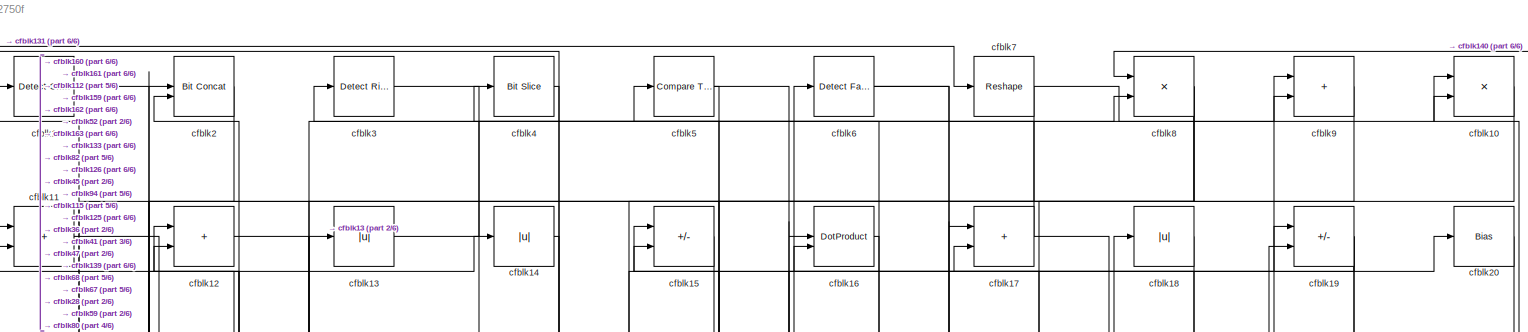
[diagram: root canvas - part 1/6, full width, top band]
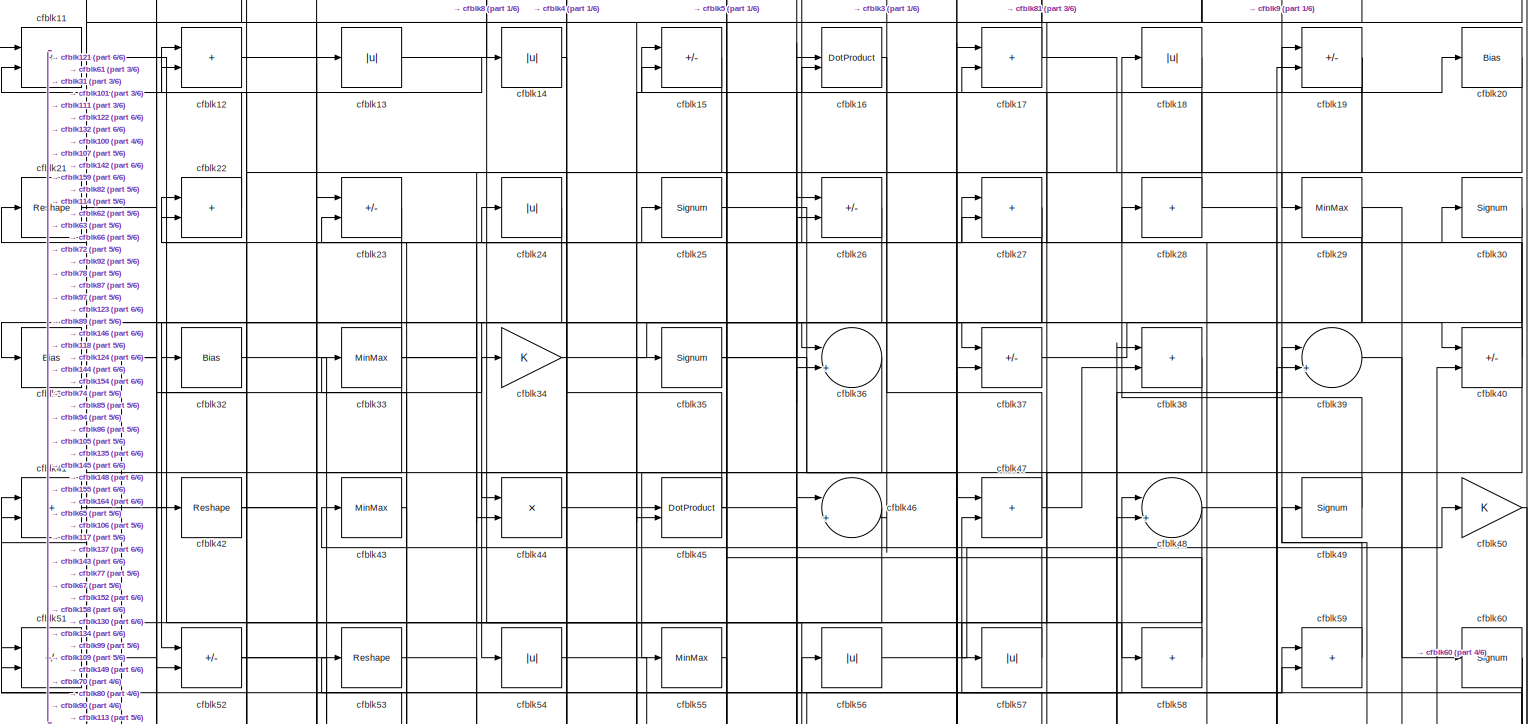
[diagram: root canvas - part 2/6, full width, top band]
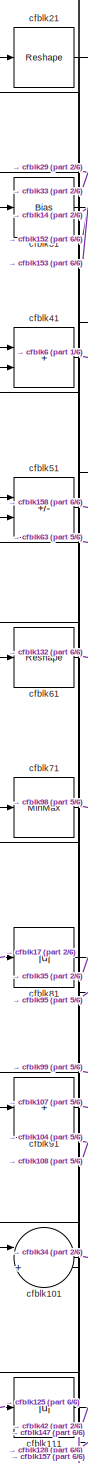
[diagram: root canvas - part 3/6, middle left region]
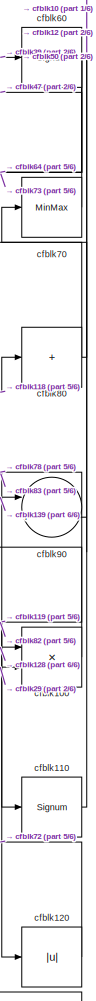
[diagram: root canvas - part 4/6, middle right region]
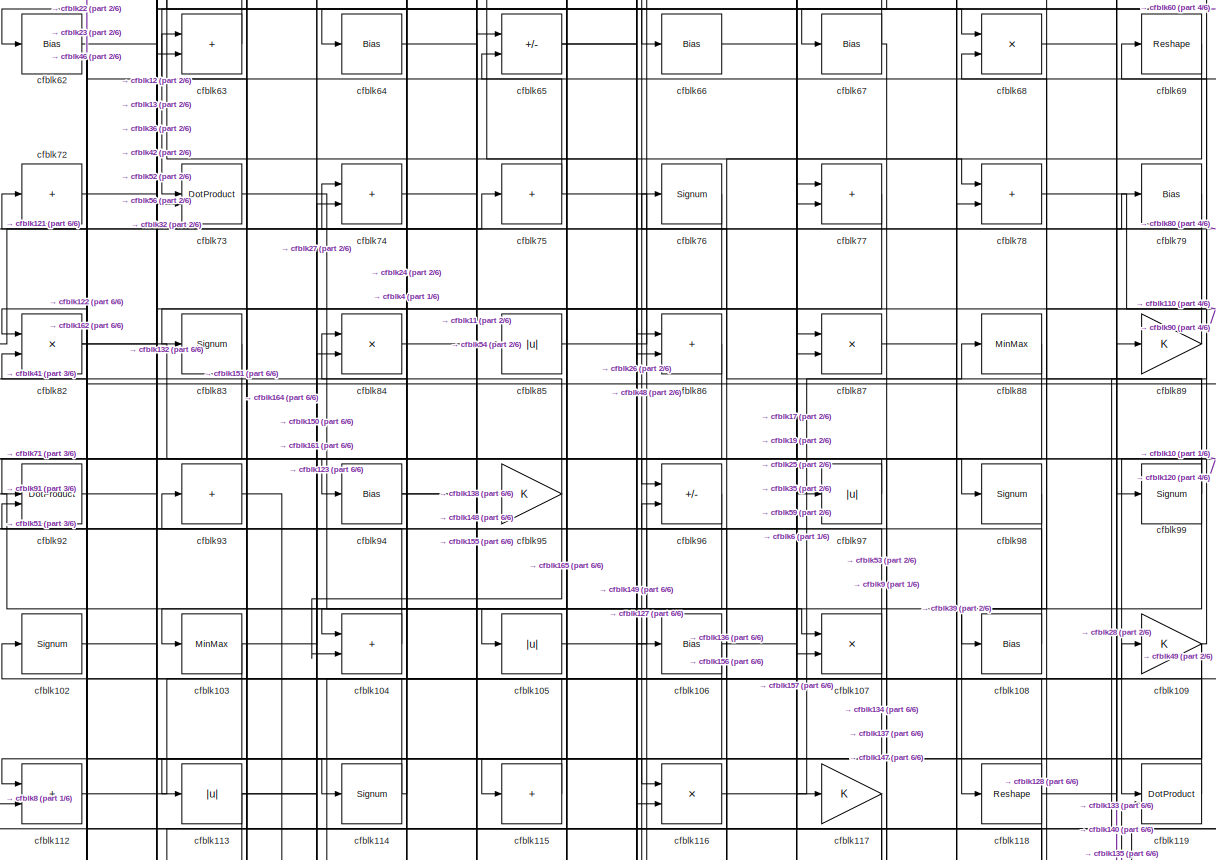
[diagram: root canvas - part 5/6, full width, middle band]
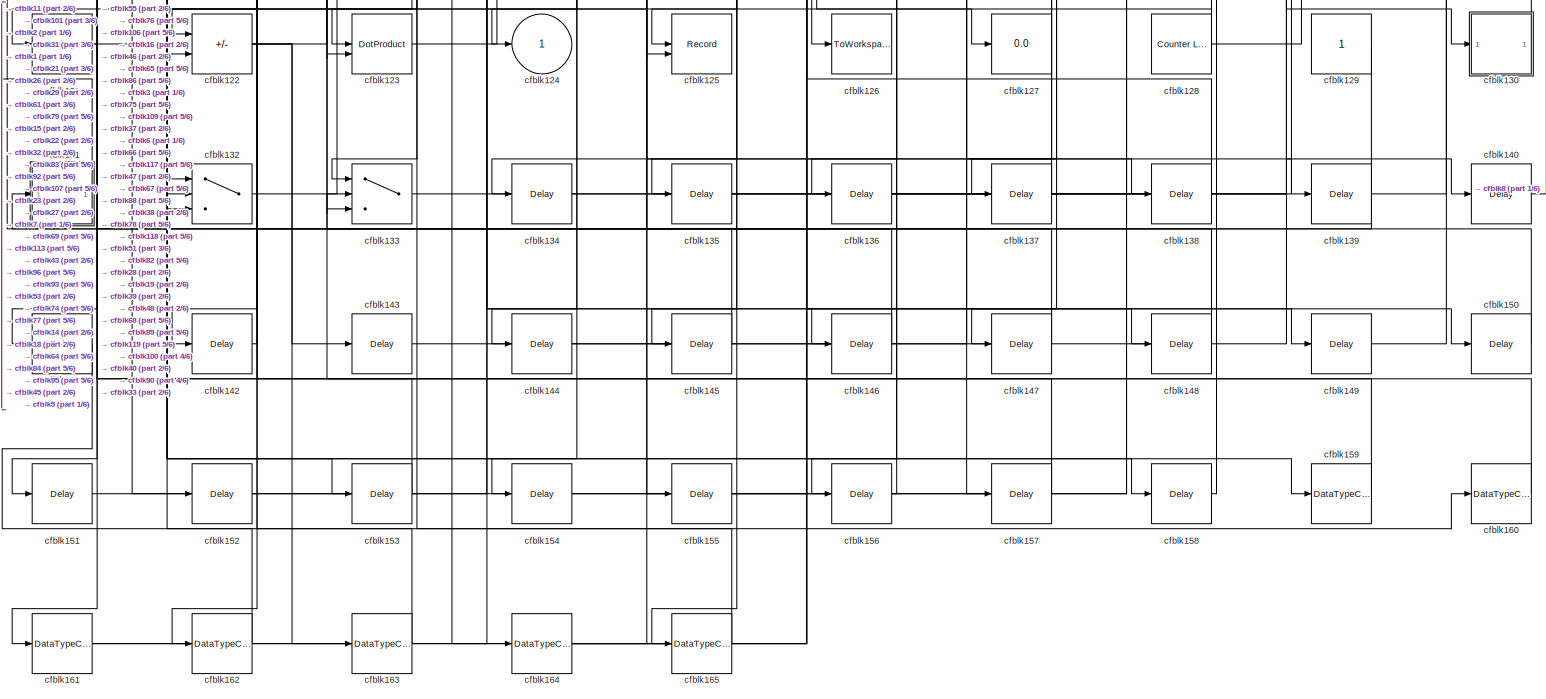
[diagram: root canvas - part 6/6, full width, bottom band]
MODEL slx_2ec541e2750f
KIND model
CONFIG AbsTol = auto
CONFIG EnableMultiTasking = off
CONFIG FixedStep = auto
CONFIG MaxStep = auto
CONFIG MinStep = auto
CONFIG RelTol = 1e-3
CONFIG SampleTimeConstraint = Unconstrained
CONFIG SolverName = VariableStepAuto
CONFIG StartTime = 0.0
CONFIG StopTime = 10.0
BLOCK [Reference] cfblk1  REF=simulink/Logic and Bit
Operations/Detect
Change
  LibrarySourceBlock = hdlsllib/Logic and Bit\nOperations/Detect\nChange
  SourceBlock = simulink/Logic and Bit\nOperations/Detect\nChange
  SourceType = Detect Change
BLOCK [Product] cfblk10
  Inputs = */
  RndMeth = Zero
  SaturateOnIntegerOverflow = on
BLOCK [Product] cfblk100
  Inputs = */
  RndMeth = Zero
  SaturateOnIntegerOverflow = on
BLOCK [Sum] cfblk101
  Inputs = |++
BLOCK [Signum] cfblk102
BLOCK [MinMax] cfblk103
BLOCK [Sum] cfblk104
  IconShape = rectangular
BLOCK [Abs] cfblk105
  SaturateOnIntegerOverflow = off
BLOCK [Bias] cfblk106
  Bias = 0.0
  SaturateOnIntegerOverflow = off
BLOCK [Product] cfblk107
  Inputs = */
  RndMeth = Zero
  SaturateOnIntegerOverflow = on
BLOCK [Bias] cfblk108
  Bias = 0.0
  SaturateOnIntegerOverflow = off
BLOCK [Gain] cfblk109
BLOCK [Sum] cfblk11
  IconShape = rectangular
BLOCK [Signum] cfblk110
BLOCK [Abs] cfblk111
  SaturateOnIntegerOverflow = off
BLOCK [Sum] cfblk112
  IconShape = rectangular
BLOCK [Abs] cfblk113
  SaturateOnIntegerOverflow = off
BLOCK [Signum] cfblk114
BLOCK [Sum] cfblk115
  IconShape = rectangular
  Inputs = +
BLOCK [Product] cfblk116
  Inputs = */
  RndMeth = Zero
  SaturateOnIntegerOverflow = on
BLOCK [Gain] cfblk117
BLOCK [Reshape] cfblk118
BLOCK [DotProduct] cfblk119
  OutDataTypeStr = Inherit: Inherit via internal rule
BLOCK [Sum] cfblk12
  IconShape = rectangular
BLOCK [Abs] cfblk120
  SaturateOnIntegerOverflow = off
BLOCK [Reshape] cfblk121
BLOCK [Sum] cfblk122
  IconShape = rectangular
  Inputs = +-
BLOCK [DotProduct] cfblk123
  OutDataTypeStr = Inherit: Inherit via internal rule
BLOCK [Outport] cfblk124
  VectorParamsAs1DForOutWhenUnconnected = off
BLOCK [Record] cfblk125
  CompatibilityTag = XY
  FileSettingsInternal = {"entries":[{"content":{"excelSettings":{"content":{},"type":"Streamout.ExcelSettings"}},"type":"Streamout.FileSettingStorage","uuid":""}],"packageUris":["http:\/\/schema.mathworks.com\/mf0\/streamout_blocks\/R2020a"],"version":"1.0"}
  Layout = [1 1]
  SignalsInternal = {"entries":[{"content":{"signals":[{"content":{"blockPath":[],"dimensions":[1],"domain":"","lineColor":"#a2142f","plots":[1],"port":1,"sid":[""],"signalID":6539,"signalName":"cfblk5"},"type":"RecordBlkView.Signal","uuid":""},{"content":{"blockPath":[],"dimensions":[1],"domain":"","lineColor":"#139fff","plots":[1],"port":2,"sid":[""],"signalID":6543,"signalName":"cfblk21"},"type":"RecordBlkView.Sig...<+161ch>
  VisualizationBindings = {"xyplotplugin":{"info":[{"series":[{"bindingParametersList":[{"parameter":"X-Axis","signalID":6539,"signalName":"cfblk5"},{"parameter":"Y-Axis","signalID":6543,"signalName":"cfblk21"}],"seriesID":41103}],"subplotID":1}]}}
  st = -1
BLOCK [ToWorkspace] cfblk126
  MaxDataPoints = inf
  SampleTime = -1
  SaveFormat = Timeseries
  VariableName = simout
BLOCK [Display] cfblk127
  Decimation = 1
BLOCK [Reference] cfblk128  REF=hdlsllib/Sources/Counter
Limited
  SourceBlock = hdlsllib/Sources/Counter\nLimited
  SourceType = Counter Limited
BLOCK [Constant] cfblk129
  SampleTime = -1
BLOCK [Abs] cfblk13
  SaturateOnIntegerOverflow = off
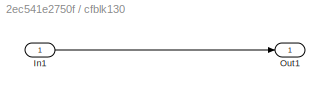
BLOCK [SubSystem] cfblk130
  LibrarySourceBlock = hdlsllib/Ports &\nSubsystems/Subsystem
BLOCK [Inport] cfblk130/In1
BLOCK [Outport] cfblk130/Out1
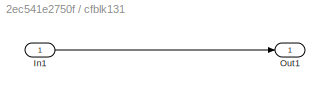
BLOCK [SubSystem] cfblk131
  LibrarySourceBlock = hdlsllib/Ports &\nSubsystems/Subsystem
BLOCK [Inport] cfblk131/In1
BLOCK [Outport] cfblk131/Out1
BLOCK [Switch] cfblk132
  InputSameDT = off
  SaturateOnIntegerOverflow = off
BLOCK [Switch] cfblk133
  InputSameDT = off
  SaturateOnIntegerOverflow = off
BLOCK [Delay] cfblk134
  InputPortMap = u0
  SampleTime = 1
BLOCK [Delay] cfblk135
  InputPortMap = u0
  SampleTime = 1
BLOCK [Delay] cfblk136
  InputPortMap = u0
  SampleTime = 1
BLOCK [Delay] cfblk137
  InputPortMap = u0
  SampleTime = 1
BLOCK [Delay] cfblk138
  InputPortMap = u0
  SampleTime = 1
BLOCK [Delay] cfblk139
  InputPortMap = u0
  SampleTime = 1
BLOCK [Abs] cfblk14
  SaturateOnIntegerOverflow = off
BLOCK [Delay] cfblk140
  InputPortMap = u0
  SampleTime = 1
BLOCK [Delay] cfblk141
  InputPortMap = u0
  SampleTime = 1
BLOCK [Delay] cfblk142
  InputPortMap = u0
  SampleTime = 1
BLOCK [Delay] cfblk143
  InputPortMap = u0
  SampleTime = 1
BLOCK [Delay] cfblk144
  InputPortMap = u0
  SampleTime = 1
BLOCK [Delay] cfblk145
  InputPortMap = u0
  SampleTime = 1
BLOCK [Delay] cfblk146
  InputPortMap = u0
  SampleTime = 1
BLOCK [Delay] cfblk147
  InputPortMap = u0
  SampleTime = 1
BLOCK [Delay] cfblk148
  InputPortMap = u0
  SampleTime = 1
BLOCK [Delay] cfblk149
  InputPortMap = u0
  SampleTime = 1
BLOCK [Sum] cfblk15
  IconShape = rectangular
  Inputs = +-
BLOCK [Delay] cfblk150
  InputPortMap = u0
  SampleTime = 1
BLOCK [Delay] cfblk151
  InputPortMap = u0
  SampleTime = 1
BLOCK [Delay] cfblk152
  InputPortMap = u0
  SampleTime = 1
BLOCK [Delay] cfblk153
  InputPortMap = u0
  SampleTime = 1
BLOCK [Delay] cfblk154
  InputPortMap = u0
  SampleTime = 1
BLOCK [Delay] cfblk155
  InputPortMap = u0
  SampleTime = 1
BLOCK [Delay] cfblk156
  InputPortMap = u0
  SampleTime = 1
BLOCK [Delay] cfblk157
  InputPortMap = u0
  SampleTime = 1
BLOCK [Delay] cfblk158
  InputPortMap = u0
  SampleTime = 1
BLOCK [DataTypeConversion] cfblk159
  OutDataTypeStr = uint8
  RndMeth = Floor
  SaturateOnIntegerOverflow = off
BLOCK [DotProduct] cfblk16
  OutDataTypeStr = Inherit: Inherit via internal rule
BLOCK [DataTypeConversion] cfblk160
  OutDataTypeStr = uint8
  RndMeth = Floor
  SaturateOnIntegerOverflow = off
BLOCK [DataTypeConversion] cfblk161
  RndMeth = Floor
  SaturateOnIntegerOverflow = off
BLOCK [DataTypeConversion] cfblk162
  OutDataTypeStr = uint8
  RndMeth = Floor
  SaturateOnIntegerOverflow = off
BLOCK [DataTypeConversion] cfblk163
  OutDataTypeStr = uint8
  RndMeth = Floor
  SaturateOnIntegerOverflow = off
BLOCK [DataTypeConversion] cfblk164
  RndMeth = Floor
  SaturateOnIntegerOverflow = off
BLOCK [DataTypeConversion] cfblk165
  OutDataTypeStr = uint8
  RndMeth = Floor
  SaturateOnIntegerOverflow = off
BLOCK [Sum] cfblk17
  IconShape = rectangular
BLOCK [Abs] cfblk18
  SaturateOnIntegerOverflow = off
BLOCK [Sum] cfblk19
  IconShape = rectangular
  Inputs = +-
BLOCK [Reference] cfblk2  REF=hdlsllib/Logic and Bit
Operations/Bit Concat
  SourceBlock = hdlsllib/Logic and Bit\nOperations/Bit Concat
  SourceType = Bit Concat
BLOCK [Bias] cfblk20
  Bias = 0.0
  SaturateOnIntegerOverflow = off
BLOCK [Reshape] cfblk21
BLOCK [Sum] cfblk22
  IconShape = rectangular
BLOCK [Sum] cfblk23
  IconShape = rectangular
  Inputs = +-
BLOCK [Abs] cfblk24
  SaturateOnIntegerOverflow = off
BLOCK [Signum] cfblk25
BLOCK [Sum] cfblk26
  IconShape = rectangular
  Inputs = +-
BLOCK [Sum] cfblk27
  IconShape = rectangular
BLOCK [Sum] cfblk28
  IconShape = rectangular
  Inputs = +
BLOCK [MinMax] cfblk29
BLOCK [Reference] cfblk3  REF=hdlsllib/Logic and Bit
Operations/Detect Rise
Nonnegative
  SourceBlock = hdlsllib/Logic and Bit\nOperations/Detect Rise\nNonnegative
  SourceType = Detect Rise Nonnegative
BLOCK [Signum] cfblk30
BLOCK [Bias] cfblk31
  Bias = 0.0
  SaturateOnIntegerOverflow = off
BLOCK [Bias] cfblk32
  Bias = 0.0
  SaturateOnIntegerOverflow = off
BLOCK [MinMax] cfblk33
BLOCK [Gain] cfblk34
BLOCK [Signum] cfblk35
BLOCK [Sum] cfblk36
  Inputs = |++
BLOCK [Sum] cfblk37
  IconShape = rectangular
  Inputs = +-
BLOCK [Sum] cfblk38
  IconShape = rectangular
BLOCK [Sum] cfblk39
  Inputs = |++
BLOCK [Reference] cfblk4  REF=hdlsllib/Logic and Bit
Operations/Bit Slice
  SourceBlock = hdlsllib/Logic and Bit\nOperations/Bit Slice
  SourceType = Bit Slice
BLOCK [Sum] cfblk40
  IconShape = rectangular
  Inputs = +-
BLOCK [Sum] cfblk41
  IconShape = rectangular
BLOCK [Reshape] cfblk42
BLOCK [MinMax] cfblk43
BLOCK [Product] cfblk44
  Inputs = */
  RndMeth = Zero
  SaturateOnIntegerOverflow = on
BLOCK [DotProduct] cfblk45
  OutDataTypeStr = Inherit: Inherit via internal rule
BLOCK [Sum] cfblk46
  Inputs = |++
BLOCK [Sum] cfblk47
  IconShape = rectangular
BLOCK [Sum] cfblk48
  Inputs = |++
BLOCK [Signum] cfblk49
BLOCK [Reference] cfblk5  REF=hdlsllib/Logic and Bit
Operations/Compare
To Constant
  SourceBlock = hdlsllib/Logic and Bit\nOperations/Compare\nTo Constant
  SourceType = Compare To Constant
BLOCK [Gain] cfblk50
BLOCK [Sum] cfblk51
  IconShape = rectangular
  Inputs = +-
BLOCK [Sum] cfblk52
  IconShape = rectangular
  Inputs = +-
BLOCK [Reshape] cfblk53
BLOCK [Abs] cfblk54
  SaturateOnIntegerOverflow = off
BLOCK [MinMax] cfblk55
BLOCK [Abs] cfblk56
  SaturateOnIntegerOverflow = off
BLOCK [Abs] cfblk57
  SaturateOnIntegerOverflow = off
BLOCK [Sum] cfblk58
  IconShape = rectangular
  Inputs = +
BLOCK [Sum] cfblk59
  IconShape = rectangular
BLOCK [Reference] cfblk6  REF=hdlsllib/Logic and Bit
Operations/Detect Fall
Nonpositive
  SourceBlock = hdlsllib/Logic and Bit\nOperations/Detect Fall\nNonpositive
  SourceType = Detect Fall Nonpositive
BLOCK [Signum] cfblk60
BLOCK [Reshape] cfblk61
BLOCK [Bias] cfblk62
  Bias = 0.0
  SaturateOnIntegerOverflow = off
BLOCK [Sum] cfblk63
  IconShape = rectangular
BLOCK [Bias] cfblk64
  Bias = 0.0
  SaturateOnIntegerOverflow = off
BLOCK [Sum] cfblk65
  IconShape = rectangular
  Inputs = +-
BLOCK [Bias] cfblk66
  Bias = 0.0
  SaturateOnIntegerOverflow = off
BLOCK [Bias] cfblk67
  Bias = 0.0
  SaturateOnIntegerOverflow = off
BLOCK [Product] cfblk68
  Inputs = */
  RndMeth = Zero
  SaturateOnIntegerOverflow = on
BLOCK [Reshape] cfblk69
BLOCK [Reshape] cfblk7
BLOCK [MinMax] cfblk70
BLOCK [MinMax] cfblk71
BLOCK [Sum] cfblk72
  IconShape = rectangular
  Inputs = +
BLOCK [DotProduct] cfblk73
  OutDataTypeStr = Inherit: Inherit via internal rule
BLOCK [Sum] cfblk74
  IconShape = rectangular
BLOCK [Sum] cfblk75
  IconShape = rectangular
  Inputs = +
BLOCK [Signum] cfblk76
BLOCK [Sum] cfblk77
  IconShape = rectangular
BLOCK [Sum] cfblk78
  IconShape = rectangular
BLOCK [Bias] cfblk79
  Bias = 0.0
  SaturateOnIntegerOverflow = off
BLOCK [Product] cfblk8
  Inputs = */
  RndMeth = Zero
  SaturateOnIntegerOverflow = on
BLOCK [Sum] cfblk80
  IconShape = rectangular
  Inputs = +
BLOCK [Abs] cfblk81
  SaturateOnIntegerOverflow = off
BLOCK [Product] cfblk82
  Inputs = */
  RndMeth = Zero
  SaturateOnIntegerOverflow = on
BLOCK [Signum] cfblk83
BLOCK [Product] cfblk84
  Inputs = */
  RndMeth = Zero
  SaturateOnIntegerOverflow = on
BLOCK [Abs] cfblk85
  SaturateOnIntegerOverflow = off
BLOCK [Sum] cfblk86
  IconShape = rectangular
BLOCK [Product] cfblk87
  Inputs = */
  RndMeth = Zero
  SaturateOnIntegerOverflow = on
BLOCK [MinMax] cfblk88
BLOCK [Gain] cfblk89
BLOCK [Sum] cfblk9
  IconShape = rectangular
BLOCK [Sum] cfblk90
  Inputs = |++
BLOCK [Sum] cfblk91
  IconShape = rectangular
  Inputs = +
BLOCK [DotProduct] cfblk92
  OutDataTypeStr = Inherit: Inherit via internal rule
BLOCK [Sum] cfblk93
  IconShape = rectangular
  Inputs = +
BLOCK [Bias] cfblk94
  Bias = 0.0
  SaturateOnIntegerOverflow = off
BLOCK [Gain] cfblk95
BLOCK [Sum] cfblk96
  IconShape = rectangular
  Inputs = +-
BLOCK [Abs] cfblk97
  SaturateOnIntegerOverflow = off
BLOCK [Signum] cfblk98
BLOCK [Signum] cfblk99
LINE cfblk100:1 -> cfblk12:1
LINE cfblk101:1 -> cfblk34:1
LINE cfblk102:1 -> cfblk116:1
NET cfblk103:1 -> cfblk113:1, cfblk75:1
LINE cfblk104:1 -> cfblk71:1
LINE cfblk105:1 -> cfblk17:1
NET cfblk106:1 -> cfblk112:1, cfblk59:1
NET cfblk107:1 -> cfblk123:2, cfblk22:1
LINE cfblk108:1 -> cfblk51:2
NET cfblk109:1 -> cfblk156:1, cfblk162:1, cfblk49:1
LINE cfblk10:1 -> cfblk115:1
LINE cfblk110:1 -> cfblk70:1
LINE cfblk111:1 -> cfblk42:1
LINE cfblk112:1 -> cfblk109:1
NET cfblk113:1 -> cfblk150:1, cfblk151:1, cfblk27:1
NET cfblk114:1 -> cfblk102:1, cfblk84:1
LINE cfblk115:1 -> cfblk63:1
LINE cfblk116:1 -> cfblk88:1
LINE cfblk117:1 -> cfblk134:1
NET cfblk118:1 -> cfblk132:3, cfblk24:1, cfblk80:1
LINE cfblk119:1 -> cfblk74:1
LINE cfblk11:1 -> cfblk85:1
LINE cfblk120:1 -> cfblk72:1
NET cfblk121:1 -> cfblk141:1, cfblk79:1
NET cfblk122:1 -> cfblk143:1, cfblk163:1, cfblk27:2
LINE cfblk123:1 -> cfblk77:1
NET cfblk128:1 -> cfblk100:1, cfblk51:1, cfblk82:2
LINE cfblk129:1 -> cfblk131:1
LINE cfblk12:1 -> cfblk114:1
LINE cfblk130/In1:1 -> cfblk130/Out1:1
LINE cfblk130:1 -> cfblk33:1
LINE cfblk131/In1:1 -> cfblk131/Out1:1
LINE cfblk131:1 -> cfblk7:1
LINE cfblk132:1 -> cfblk69:1
LINE cfblk133:1 -> cfblk89:1
LINE cfblk134:1 -> cfblk19:2
LINE cfblk135:1 -> cfblk119:2
LINE cfblk136:1 -> cfblk78:2
LINE cfblk137:1 -> cfblk47:1
LINE cfblk138:1 -> cfblk86:1
LINE cfblk139:1 -> cfblk90:1
LINE cfblk13:1 -> cfblk8:2
LINE cfblk140:1 -> cfblk8:1
LINE cfblk141:1 -> cfblk160:1
LINE cfblk142:1 -> cfblk22:2
LINE cfblk143:1 -> cfblk37:2
LINE cfblk144:1 -> cfblk39:2
LINE cfblk145:1 -> cfblk11:1
LINE cfblk146:1 -> cfblk23:1
LINE cfblk147:1 -> cfblk101:2
LINE cfblk148:1 -> cfblk65:1
LINE cfblk149:1 -> cfblk40:2
LINE cfblk14:1 -> cfblk154:1
LINE cfblk150:1 -> cfblk92:2
LINE cfblk151:1 -> cfblk74:2
LINE cfblk152:1 -> cfblk48:2
LINE cfblk153:1 -> cfblk133:2
LINE cfblk154:1 -> cfblk38:1
LINE cfblk155:1 -> cfblk46:1
LINE cfblk156:1 -> cfblk96:2
LINE cfblk157:1 -> cfblk21:1
LINE cfblk158:1 -> cfblk28:1
LINE cfblk159:1 -> cfblk32:1
LINE cfblk15:1 -> cfblk142:1
LINE cfblk160:1 -> cfblk1:1
NET cfblk161:1 -> cfblk84:2, cfblk95:1
LINE cfblk162:1 -> cfblk2:1
LINE cfblk163:1 -> cfblk2:2
NET cfblk164:1 -> cfblk106:1, cfblk16:1, cfblk26:2
LINE cfblk165:1 -> cfblk93:1
LINE cfblk16:1 -> cfblk46:2
NET cfblk17:1 -> cfblk29:1, cfblk81:1
LINE cfblk18:1 -> cfblk124:1
NET cfblk19:1 -> cfblk105:1, cfblk16:2, cfblk77:2
LINE cfblk1:1 -> cfblk159:1
LINE cfblk20:1 -> cfblk44:2
NET cfblk21:1 -> cfblk111:1, cfblk125:2
LINE cfblk22:1 -> cfblk11:2
LINE cfblk23:1 -> cfblk62:1
LINE cfblk24:1 -> cfblk44:1
LINE cfblk25:1 -> cfblk87:1
LINE cfblk26:1 -> cfblk122:2
NET cfblk27:1 -> cfblk144:1, cfblk45:1
NET cfblk28:1 -> cfblk5:1, cfblk99:1
NET cfblk29:1 -> cfblk100:2, cfblk132:2, cfblk61:1
LINE cfblk2:1 -> cfblk161:1
LINE cfblk30:1 -> cfblk52:1
NET cfblk31:1 -> cfblk14:1, cfblk152:1, cfblk153:1
LINE cfblk32:1 -> cfblk97:1
NET cfblk33:1 -> cfblk101:1, cfblk31:1, cfblk36:1, cfblk58:1
LINE cfblk34:1 -> cfblk37:1
NET cfblk35:1 -> cfblk117:1, cfblk20:1
LINE cfblk36:1 -> cfblk63:2
LINE cfblk37:1 -> cfblk40:1
LINE cfblk38:1 -> cfblk54:1
LINE cfblk39:1 -> cfblk60:1
LINE cfblk3:1 -> cfblk126:1
NET cfblk40:1 -> cfblk15:2, cfblk17:2, cfblk57:1
LINE cfblk41:1 -> cfblk6:1
NET cfblk42:1 -> cfblk30:1, cfblk66:1
LINE cfblk43:1 -> cfblk123:1
LINE cfblk44:1 -> cfblk55:1
NET cfblk45:1 -> cfblk145:1, cfblk148:1, cfblk4:1
LINE cfblk46:1 -> cfblk82:1
NET cfblk47:1 -> cfblk38:2, cfblk3:1
NET cfblk48:1 -> cfblk121:1, cfblk130:1
LINE cfblk49:1 -> cfblk18:1
LINE cfblk4:1 -> cfblk94:1
LINE cfblk50:1 -> cfblk90:2
LINE cfblk51:1 -> cfblk158:1
NET cfblk52:1 -> cfblk78:1, cfblk87:2
LINE cfblk53:1 -> cfblk146:1
LINE cfblk54:1 -> cfblk86:2
LINE cfblk55:1 -> cfblk135:1
LINE cfblk56:1 -> cfblk50:1
LINE cfblk57:1 -> cfblk43:1
LINE cfblk58:1 -> cfblk15:1
LINE cfblk59:1 -> cfblk9:1
NET cfblk5:1 -> cfblk125:1, cfblk36:2
NET cfblk60:1 -> cfblk64:1, cfblk73:1, cfblk73:2
LINE cfblk61:1 -> cfblk132:1
LINE cfblk62:1 -> cfblk13:1
LINE cfblk63:1 -> cfblk41:1
LINE cfblk64:1 -> cfblk155:1
NET cfblk65:1 -> cfblk149:1, cfblk26:1
LINE cfblk66:1 -> cfblk157:1
NET cfblk67:1 -> cfblk147:1, cfblk53:1
LINE cfblk68:1 -> cfblk140:1
LINE cfblk69:1 -> cfblk136:1
NET cfblk6:1 -> cfblk139:1, cfblk68:1
LINE cfblk70:1 -> cfblk47:2
LINE cfblk71:1 -> cfblk98:1
LINE cfblk72:1 -> cfblk25:1
LINE cfblk73:1 -> cfblk107:2
LINE cfblk74:1 -> cfblk19:1
NET cfblk75:1 -> cfblk127:1, cfblk65:2
LINE cfblk76:1 -> cfblk165:1
LINE cfblk77:1 -> cfblk103:1
LINE cfblk78:1 -> cfblk110:1
LINE cfblk79:1 -> cfblk104:1
NET cfblk7:1 -> cfblk133:3, cfblk9:2
NET cfblk80:1 -> cfblk10:1, cfblk12:2
LINE cfblk81:1 -> cfblk35:1
NET cfblk82:1 -> cfblk10:2, cfblk120:1
LINE cfblk83:1 -> cfblk122:1
LINE cfblk84:1 -> cfblk138:1
LINE cfblk85:1 -> cfblk48:1
LINE cfblk86:1 -> cfblk92:1
LINE cfblk87:1 -> cfblk39:1
LINE cfblk88:1 -> cfblk137:1
LINE cfblk89:1 -> cfblk23:2
NET cfblk8:1 -> cfblk112:2, cfblk45:2, cfblk52:2
NET cfblk90:1 -> cfblk119:1, cfblk83:1
LINE cfblk91:1 -> cfblk107:1
LINE cfblk92:1 -> cfblk56:1
LINE cfblk93:1 -> cfblk164:1
NET cfblk94:1 -> cfblk116:2, cfblk59:2
NET cfblk95:1 -> cfblk104:2, cfblk41:2
LINE cfblk96:1 -> cfblk133:1
LINE cfblk97:1 -> cfblk96:1
LINE cfblk98:1 -> cfblk118:1
NET cfblk99:1 -> cfblk108:1, cfblk68:2, cfblk76:1, cfblk91:1
LINE cfblk9:1 -> cfblk67:1
note: NET lines group one-source signal fan-out (src -> all destinations, sorted); 1:1 wires keep LINE
